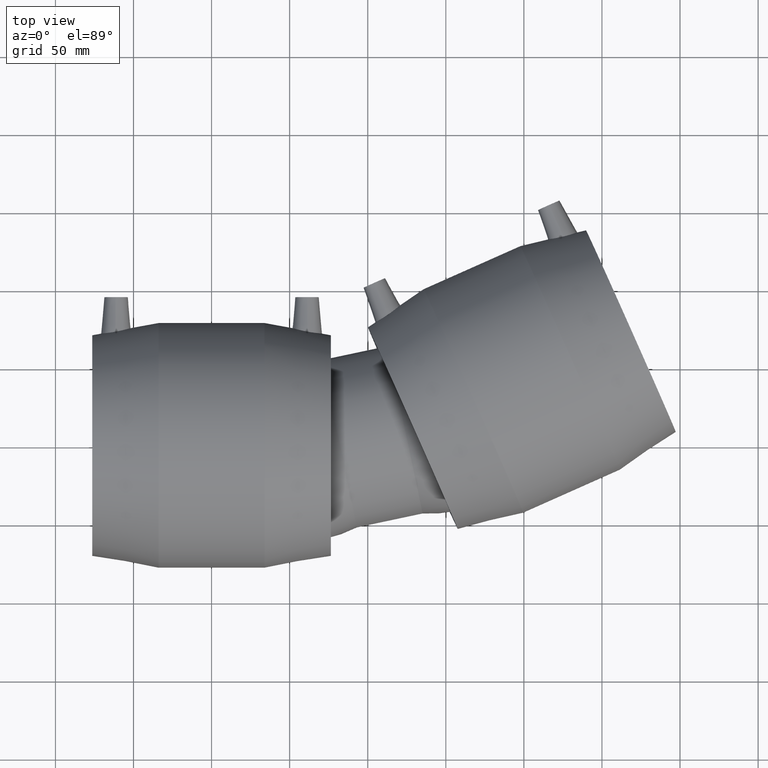
[diagram: clean part render]
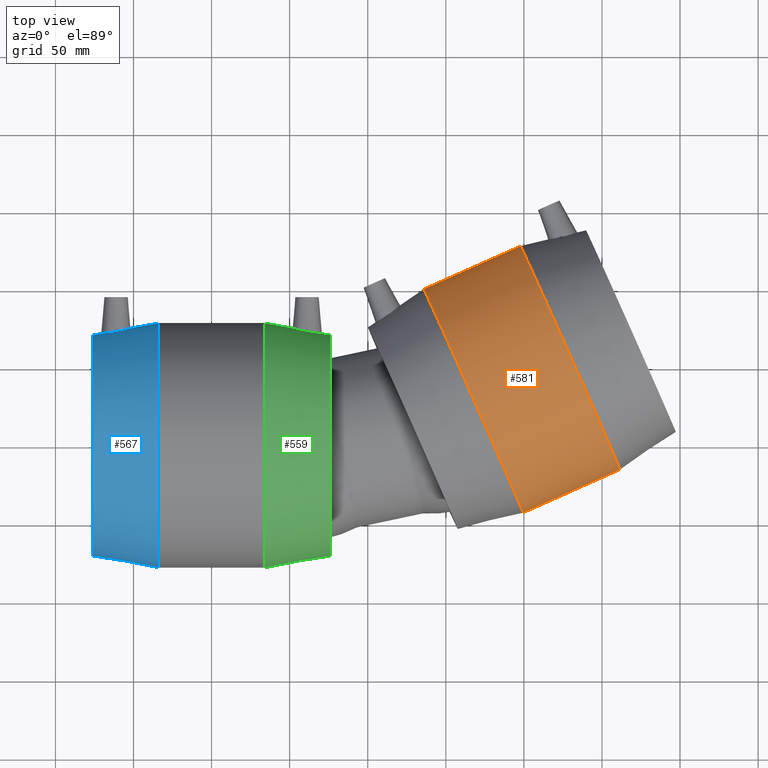
[diagram: same view with three faces highlighted in distinct colors, each labeled with its STEP entity id]
A machine part, top view with three faces highlighted in distinct colors.
Their STEP definitions:

[orange] entity #581 — the highlighted cylindrical surface (bore or boss wall) has radius 78.5 mm, axis along (0.9135, 0.4067, 0).
#60=CYLINDRICAL_SURFACE('',#672,78.5);
#101=FACE_BOUND('',#242,.T.);
#153=FACE_OUTER_BOUND('',#241,.T.);
#241=EDGE_LOOP('',(#516));
#242=EDGE_LOOP('',(#517));
#310=CIRCLE('',#673,78.5);
#311=CIRCLE('',#674,78.5);
#362=VERTEX_POINT('',#1375);
#363=VERTEX_POINT('',#1377);
#418=EDGE_CURVE('',#362,#362,#310,.T.);
#419=EDGE_CURVE('',#363,#363,#311,.T.);
#516=ORIENTED_EDGE('',*,*,#418,.T.);
#517=ORIENTED_EDGE('',*,*,#419,.F.);
#581=ADVANCED_FACE('',(#153,#101),#60,.T.);
#672=AXIS2_PLACEMENT_3D('',#1374,#851,#852);
#673=AXIS2_PLACEMENT_3D('',#1376,#853,#854);
#674=AXIS2_PLACEMENT_3D('',#1378,#855,#856);
#851=DIRECTION('center_axis',(0.913545457642601,0.4067366430758,1.19788532833232E-16));
#852=DIRECTION('ref_axis',(-0.4067366430758,0.913545457642601,-2.54618386665283E-17));
#853=DIRECTION('center_axis',(0.913545457642601,0.4067366430758,1.19788532833232E-16));
#854=DIRECTION('ref_axis',(1.19788532833232E-16,2.54618386665284E-17,-1.));
#855=DIRECTION('center_axis',(0.913545457642601,0.4067366430758,1.19788532833232E-16));
#856=DIRECTION('ref_axis',(1.19788532833232E-16,2.54618386665284E-17,-1.));
#1374=CARTESIAN_POINT('Origin',(198.721566683114,42.2395729438427,1.24400310534653E-14));
#1375=CARTESIAN_POINT('',(135.823549187579,100.164519168517,6.38044545509628E-15));
#1376=CARTESIAN_POINT('Origin',(167.75237566903,28.4512007435731,8.37919979041875E-15));
#1377=CARTESIAN_POINT('',(197.761931215748,127.741263569057,1.45021079811894E-14));
#1378=CARTESIAN_POINT('Origin',(229.690757697198,56.0279451441124,1.65008623165119E-14));

[blue] entity #567 — the highlighted conical surface has half-angle 10.465 deg.
#19=CONICAL_SURFACE('',#646,74.575,10.4649232508182);
#88=FACE_BOUND('',#215,.T.);
#89=FACE_BOUND('',#216,.T.);
#139=FACE_OUTER_BOUND('',#214,.T.);
#214=EDGE_LOOP('',(#487));
#215=EDGE_LOOP('',(#488));
#216=EDGE_LOOP('',(#489));
#268=B_SPLINE_CURVE_WITH_KNOTS('',3,(#1206,#1207,#1208,#1209,#1210,#1211,
#1212,#1213,#1214,#1215,#1216,#1217,#1218,#1219,#1220,#1221,#1222,#1223,
#1224,#1225,#1226,#1227,#1228,#1229,#1230,#1231,#1232,#1233,#1234,#1235,
#1236,#1237,#1238,#1239),.UNSPECIFIED.,.T.,.F.,(4,2,2,2,2,2,2,2,2,2,2,2,
2,2,2,2,4),(0.,0.35095059498776,0.701901189975519,1.05193043017751,1.4019596703795,
1.75198891058149,2.10201815078348,2.45296874577124,2.803919340759,3.17398075055708,
3.54404216035516,3.90484217158699,4.26564218281882,4.62644219405065,4.98724220528248,
5.35730361508056,5.72736502487864),.UNSPECIFIED.);
#290=CIRCLE('',#630,78.5);
#297=CIRCLE('',#645,70.65);
#339=VERTEX_POINT('',#1205);
#341=VERTEX_POINT('',#1243);
#348=VERTEX_POINT('',#1265);
#394=EDGE_CURVE('',#339,#339,#268,.T.);
#396=EDGE_CURVE('',#341,#341,#290,.T.);
#403=EDGE_CURVE('',#348,#348,#297,.T.);
#487=ORIENTED_EDGE('',*,*,#396,.F.);
#488=ORIENTED_EDGE('',*,*,#394,.T.);
#489=ORIENTED_EDGE('',*,*,#403,.T.);
#567=ADVANCED_FACE('',(#139,#88,#89),#19,.T.);
#630=AXIS2_PLACEMENT_3D('',#1244,#767,#768);
#645=AXIS2_PLACEMENT_3D('',#1266,#797,#798);
#646=AXIS2_PLACEMENT_3D('',#1267,#799,#800);
#767=DIRECTION('center_axis',(1.,1.83697019872103E-16,0.));
#768=DIRECTION('ref_axis',(0.,0.,-1.));
#797=DIRECTION('center_axis',(1.,1.83697019872103E-16,0.));
#798=DIRECTION('ref_axis',(0.,0.,-1.));
#799=DIRECTION('center_axis',(1.,1.83697019872103E-16,0.));
#800=DIRECTION('ref_axis',(-1.79891298841636E-16,1.,0.));
#1205=CARTESIAN_POINT('',(-61.4953422201756,72.794039276091,9.43530710710573));
#1206=CARTESIAN_POINT('Ctrl Pts',(-61.4953422201754,72.7940392760912,9.43530710710572));
#1207=CARTESIAN_POINT('Ctrl Pts',(-62.6457188339398,72.5833206577627,9.40799450161102));
#1208=CARTESIAN_POINT('Ctrl Pts',(-63.8749713072388,72.3886569409078,9.15255194756809));
#1209=CARTESIAN_POINT('Ctrl Pts',(-66.1370037505727,72.0860618702797,8.16647351109304));
#1210=CARTESIAN_POINT('Ctrl Pts',(-67.1694823853415,71.9766023267643,7.4356159539641));
#1211=CARTESIAN_POINT('Ctrl Pts',(-68.7949560464357,71.8285469073332,5.76360759197479));
#1212=CARTESIAN_POINT('Ctrl Pts',(-69.4979894694001,71.7795249319707,4.71135409108881));
#1213=CARTESIAN_POINT('Ctrl Pts',(-70.4292651752512,71.721410062968,2.41290210399687));
#1214=CARTESIAN_POINT('Ctrl Pts',(-70.657552902213,71.7106637580618,1.16676413400663));
#1215=CARTESIAN_POINT('Ctrl Pts',(-70.657552902213,71.7106637580618,-1.16676413400663));
#1216=CARTESIAN_POINT('Ctrl Pts',(-70.4292651752512,71.721410062968,-2.41290210399687));
#1217=CARTESIAN_POINT('Ctrl Pts',(-69.4979894694001,71.7795249319707,-4.71135409108881));
#1218=CARTESIAN_POINT('Ctrl Pts',(-68.7949560464357,71.8285469073332,-5.76360759197479));
#1219=CARTESIAN_POINT('Ctrl Pts',(-67.1694823853415,71.9766023267643,-7.4356159539641));
#1220=CARTESIAN_POINT('Ctrl Pts',(-66.1370037505727,72.0860618702797,-8.16647351109304));
#1221=CARTESIAN_POINT('Ctrl Pts',(-63.8749713072388,72.3886569409078,-9.15255194756809));
#1222=CARTESIAN_POINT('Ctrl Pts',(-62.6457188339398,72.5833206577627,-9.40799450161102));
#1223=CARTESIAN_POINT('Ctrl Pts',(-60.2823225029607,73.0162324567924,-9.46410700498019));
#1224=CARTESIAN_POINT('Ctrl Pts',(-58.9910282932068,73.2865265581482,-9.24433564045463));
#1225=CARTESIAN_POINT('Ctrl Pts',(-56.6153554502226,73.8417370672447,-8.29383118016851));
#1226=CARTESIAN_POINT('Ctrl Pts',(-55.5305042337671,74.1249567393959,-7.56328897501665));
#1227=CARTESIAN_POINT('Ctrl Pts',(-53.8349943468793,74.5915285840898,-5.87727282543577));
#1228=CARTESIAN_POINT('Ctrl Pts',(-53.1033280965419,74.807283830568,-4.81730135578144));
#1229=CARTESIAN_POINT('Ctrl Pts',(-52.1285560947805,75.1013133273093,-2.48017450372942));
#1230=CARTESIAN_POINT('Ctrl Pts',(-51.8857925650303,75.1779183144591,-1.20266670410611));
#1231=CARTESIAN_POINT('Ctrl Pts',(-51.8857925650303,75.1779183144591,1.2026667041061));
#1232=CARTESIAN_POINT('Ctrl Pts',(-52.1285560947805,75.1013133273093,2.48017450372941));
#1233=CARTESIAN_POINT('Ctrl Pts',(-53.1033280965419,74.807283830568,4.81730135578143));
#1234=CARTESIAN_POINT('Ctrl Pts',(-53.8349943468793,74.5915285840898,5.87727282543577));
#1235=CARTESIAN_POINT('Ctrl Pts',(-55.5305042337671,74.1249567393959,7.56328897501665));
#1236=CARTESIAN_POINT('Ctrl Pts',(-56.6153554502226,73.8417370672447,8.29383118016851));
#1237=CARTESIAN_POINT('Ctrl Pts',(-58.9910282932069,73.2865265581482,9.24433564045463));
#1238=CARTESIAN_POINT('Ctrl Pts',(-60.2823225029607,73.0162324567924,9.46410700498019));
#1239=CARTESIAN_POINT('Ctrl Pts',(-61.4953422201754,72.7940392760912,9.43530710710572));
#1243=CARTESIAN_POINT('',(-33.9,78.5,0.));
#1244=CARTESIAN_POINT('Origin',(-33.9,7.80712334456438E-15,0.));
#1265=CARTESIAN_POINT('',(-76.4,70.65,0.));
#1266=CARTESIAN_POINT('Origin',(-76.4,1.4791141972894E-30,0.));
#1267=CARTESIAN_POINT('Origin',(-55.15,3.90356167228219E-15,0.));

[green] entity #559 — the highlighted conical surface has half-angle 10.465 deg.
#17=CONICAL_SURFACE('',#631,74.575,10.4649232508182);
#79=FACE_BOUND('',#198,.T.);
#80=FACE_BOUND('',#199,.T.);
#131=FACE_OUTER_BOUND('',#197,.T.);
#197=EDGE_LOOP('',(#469));
#198=EDGE_LOOP('',(#470));
#199=EDGE_LOOP('',(#471));
#267=B_SPLINE_CURVE_WITH_KNOTS('',3,(#1169,#1170,#1171,#1172,#1173,#1174,
#1175,#1176,#1177,#1178,#1179,#1180,#1181,#1182,#1183,#1184,#1185,#1186,
#1187,#1188,#1189,#1190,#1191,#1192,#1193,#1194,#1195,#1196,#1197,#1198,
#1199,#1200,#1201,#1202),.UNSPECIFIED.,.T.,.F.,(4,2,2,2,2,2,2,2,2,2,2,2,
2,2,2,2,4),(0.,0.370061409798078,0.740122819596157,1.10092283082799,1.46172284205982,
1.82252285329165,2.18332286452348,2.55338427432156,2.92344568411964,3.2743962791074,
3.62534687409516,3.97537611429715,4.32540535449914,4.67543459470113,5.02546383490312,
5.37641442989088,5.72736502487864),.UNSPECIFIED.);
#289=CIRCLE('',#629,78.5);
#291=CIRCLE('',#632,70.65);
#338=VERTEX_POINT('',#1168);
#340=VERTEX_POINT('',#1241);
#342=VERTEX_POINT('',#1246);
#393=EDGE_CURVE('',#338,#338,#267,.T.);
#395=EDGE_CURVE('',#340,#340,#289,.T.);
#397=EDGE_CURVE('',#342,#342,#291,.T.);
#469=ORIENTED_EDGE('',*,*,#397,.F.);
#470=ORIENTED_EDGE('',*,*,#393,.T.);
#471=ORIENTED_EDGE('',*,*,#395,.T.);
#559=ADVANCED_FACE('',(#131,#79,#80),#17,.T.);
#629=AXIS2_PLACEMENT_3D('',#1242,#765,#766);
#631=AXIS2_PLACEMENT_3D('',#1245,#769,#770);
#632=AXIS2_PLACEMENT_3D('',#1247,#771,#772);
#765=DIRECTION('center_axis',(1.,1.83697019872103E-16,0.));
#766=DIRECTION('ref_axis',(0.,0.,-1.));
#769=DIRECTION('center_axis',(-1.,-1.83697019872103E-16,0.));
#770=DIRECTION('ref_axis',(-1.79891298841636E-16,1.,0.));
#771=DIRECTION('center_axis',(1.,1.83697019872103E-16,0.));
#772=DIRECTION('ref_axis',(0.,0.,-1.));
#1168=CARTESIAN_POINT('',(61.4953422201756,72.794039276091,9.43530710710573));
#1169=CARTESIAN_POINT('Ctrl Pts',(61.4953422201754,72.7940392760912,9.43530710710572));
#1170=CARTESIAN_POINT('Ctrl Pts',(60.2823225029607,73.0162324567925,9.46410700498019));
#1171=CARTESIAN_POINT('Ctrl Pts',(58.9910282932069,73.2865265581482,9.24433564045463));
#1172=CARTESIAN_POINT('Ctrl Pts',(56.6153554502226,73.8417370672447,8.29383118016851));
#1173=CARTESIAN_POINT('Ctrl Pts',(55.5305042337671,74.124956739396,7.56328897501665));
#1174=CARTESIAN_POINT('Ctrl Pts',(53.8349943468793,74.5915285840899,5.87727282543577));
#1175=CARTESIAN_POINT('Ctrl Pts',(53.1033280965419,74.807283830568,4.81730135578143));
#1176=CARTESIAN_POINT('Ctrl Pts',(52.1285560947805,75.1013133273094,2.48017450372942));
#1177=CARTESIAN_POINT('Ctrl Pts',(51.8857925650303,75.1779183144591,1.2026667041061));
#1178=CARTESIAN_POINT('Ctrl Pts',(51.8857925650303,75.1779183144591,-1.2026667041061));
#1179=CARTESIAN_POINT('Ctrl Pts',(52.1285560947805,75.1013133273094,-2.48017450372942));
#1180=CARTESIAN_POINT('Ctrl Pts',(53.1033280965419,74.807283830568,-4.81730135578143));
#1181=CARTESIAN_POINT('Ctrl Pts',(53.8349943468793,74.5915285840899,-5.87727282543577));
#1182=CARTESIAN_POINT('Ctrl Pts',(55.5305042337671,74.124956739396,-7.56328897501665));
#1183=CARTESIAN_POINT('Ctrl Pts',(56.6153554502226,73.8417370672447,-8.29383118016851));
#1184=CARTESIAN_POINT('Ctrl Pts',(58.9910282932069,73.2865265581482,-9.24433564045463));
#1185=CARTESIAN_POINT('Ctrl Pts',(60.2823225029607,73.0162324567925,-9.46410700498019));
#1186=CARTESIAN_POINT('Ctrl Pts',(62.6457188339398,72.5833206577627,-9.40799450161102));
#1187=CARTESIAN_POINT('Ctrl Pts',(63.8749713072388,72.3886569409078,-9.15255194756808));
#1188=CARTESIAN_POINT('Ctrl Pts',(66.1370037505727,72.0860618702797,-8.16647351109304));
#1189=CARTESIAN_POINT('Ctrl Pts',(67.1694823853415,71.9766023267643,-7.4356159539641));
#1190=CARTESIAN_POINT('Ctrl Pts',(68.7949560464357,71.8285469073333,-5.76360759197479));
#1191=CARTESIAN_POINT('Ctrl Pts',(69.4979894694001,71.7795249319707,-4.7113540910888));
#1192=CARTESIAN_POINT('Ctrl Pts',(70.4292651752512,71.7214100629681,-2.41290210399687));
#1193=CARTESIAN_POINT('Ctrl Pts',(70.657552902213,71.7106637580619,-1.16676413400663));
#1194=CARTESIAN_POINT('Ctrl Pts',(70.657552902213,71.7106637580619,1.16676413400663));
#1195=CARTESIAN_POINT('Ctrl Pts',(70.4292651752512,71.7214100629681,2.41290210399687));
#1196=CARTESIAN_POINT('Ctrl Pts',(69.4979894694001,71.7795249319707,4.71135409108881));
#1197=CARTESIAN_POINT('Ctrl Pts',(68.7949560464357,71.8285469073333,5.76360759197479));
#1198=CARTESIAN_POINT('Ctrl Pts',(67.1694823853415,71.9766023267643,7.4356159539641));
#1199=CARTESIAN_POINT('Ctrl Pts',(66.1370037505727,72.0860618702797,8.16647351109304));
#1200=CARTESIAN_POINT('Ctrl Pts',(63.8749713072388,72.3886569409078,9.15255194756808));
#1201=CARTESIAN_POINT('Ctrl Pts',(62.6457188339398,72.5833206577627,9.40799450161101));
#1202=CARTESIAN_POINT('Ctrl Pts',(61.4953422201754,72.7940392760912,9.43530710710572));
#1241=CARTESIAN_POINT('',(33.9,78.5,0.));
#1242=CARTESIAN_POINT('Origin',(33.9,2.0261781291893E-14,0.));
#1245=CARTESIAN_POINT('Origin',(55.15,2.41653429641751E-14,0.));
#1246=CARTESIAN_POINT('',(76.4,70.65,0.));
#1247=CARTESIAN_POINT('Origin',(76.4,2.80689046364573E-14,0.));